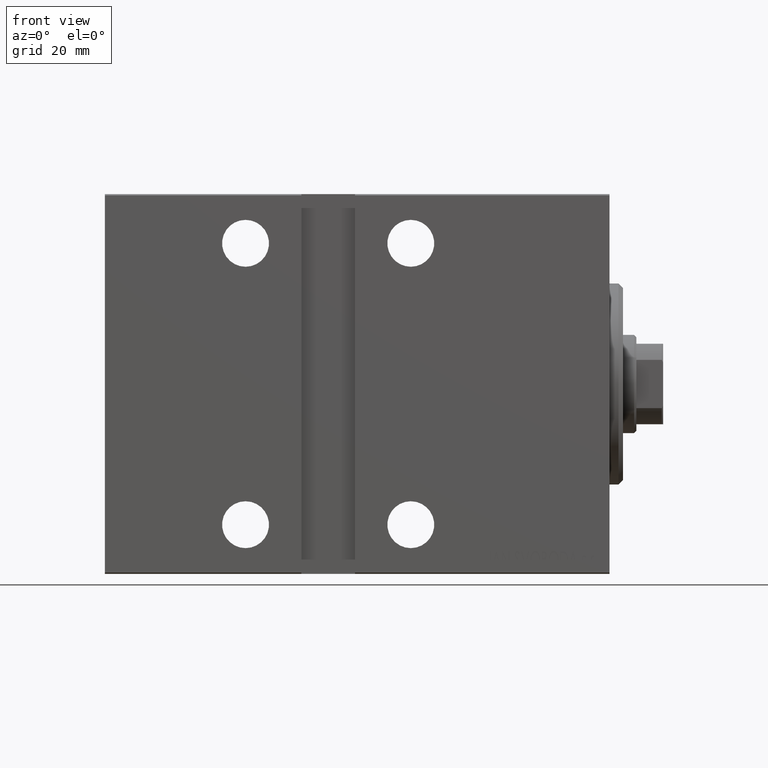
[diagram: clean part render]
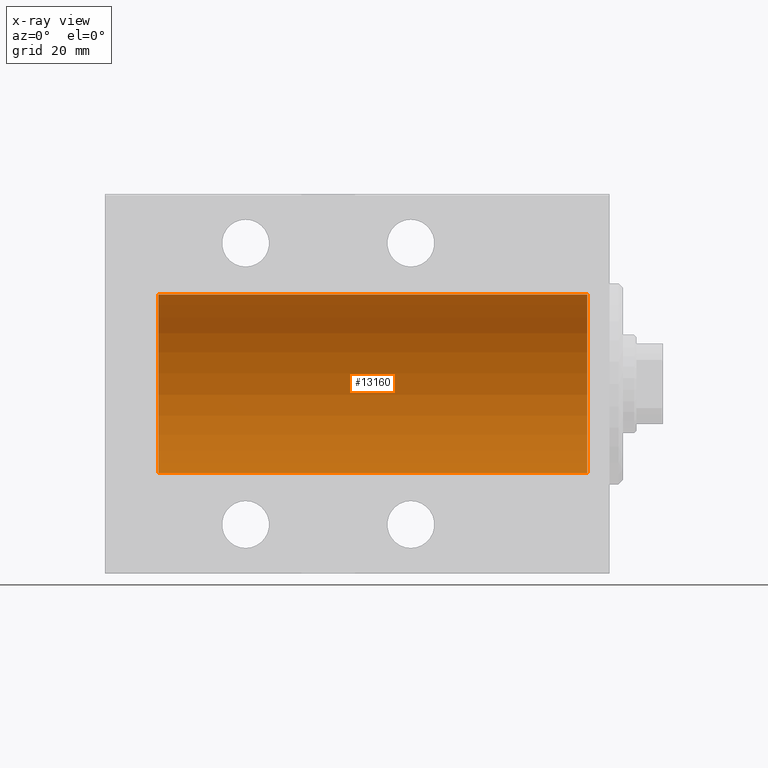
[diagram: x-ray — body ghosted, one internal face saturated and labeled with its STEP entity id]
A machine part, front view, then the same camera in x-ray: the body is ghosted and one INTERNAL B-rep face — a face not visible from any outside direction — is saturated and labeled: STEP entity #13160.
In plain terms, the highlighted cylindrical surface (partial cylindrical patch) has radius 20 mm, axis along (1, 0, -0).
Its self-contained STEP definition (entity closure, byte-faithful):
#347 = DIRECTION ( 'NONE',  ( 0.000000000000000000, 0.000000000000000000, 1.000000000000000000 ) ) ;
#1435 = DIRECTION ( 'NONE',  ( -1.000000000000000000, -0.000000000000000000, -0.000000000000000000 ) ) ;
#2377 = AXIS2_PLACEMENT_3D ( 'NONE', #10007, #30304, #7605 ) ;
#2648 = CARTESIAN_POINT ( 'NONE',  ( 101.0000000000000000, 0.000000000000000000, 20.00000000000000000 ) ) ;
#4101 = DIRECTION ( 'NONE',  ( -1.000000000000000000, -0.000000000000000000, -0.000000000000000000 ) ) ;
#4253 = EDGE_LOOP ( 'NONE', ( #20001, #27027, #23843, #39064 ) ) ;
#4713 = VERTEX_POINT ( 'NONE', #14643 ) ;
#7102 = VECTOR ( 'NONE', #1435, 1000.000000000000000 ) ;
#7605 = DIRECTION ( 'NONE',  ( 0.000000000000000000, 0.000000000000000000, 1.000000000000000000 ) ) ;
#7907 = CARTESIAN_POINT ( 'NONE',  ( 101.0000000000000000, 0.000000000000000000, 0.000000000000000000 ) ) ;
#10007 = CARTESIAN_POINT ( 'NONE',  ( 5.000000000000004441, 0.000000000000000000, 0.000000000000000000 ) ) ;
#12061 = AXIS2_PLACEMENT_3D ( 'NONE', #7907, #28184, #347 ) ;
#13160 = ADVANCED_FACE ( 'NONE', ( #27230 ), #20663, .F. ) ;
#13511 = VECTOR ( 'NONE', #29037, 1000.000000000000000 ) ;
#14643 = CARTESIAN_POINT ( 'NONE',  ( 101.0000000000000000, 0.000000000000000000, 20.00000000000000000 ) ) ;
#15724 = LINE ( 'NONE', #2648, #13511 ) ;
#15882 = CARTESIAN_POINT ( 'NONE',  ( 5.000000000000004441, 0.000000000000000000, 20.00000000000000000 ) ) ;
#17341 = EDGE_CURVE ( 'NONE', #28485, #27022, #31328, .T. ) ;
#20001 = ORIENTED_EDGE ( 'NONE', *, *, #26413, .F. ) ;
#20663 = CYLINDRICAL_SURFACE ( 'NONE', #27194, 20.00000000000000000 ) ;
#23843 = ORIENTED_EDGE ( 'NONE', *, *, #28322, .T. ) ;
#26142 = CARTESIAN_POINT ( 'NONE',  ( 5.000000000000004441, 2.449293598294706513E-15, -20.00000000000000000 ) ) ;
#26413 = EDGE_CURVE ( 'NONE', #28485, #4713, #32282, .T. ) ;
#26525 = EDGE_CURVE ( 'NONE', #4713, #34468, #15724, .T. ) ;
#27022 = VERTEX_POINT ( 'NONE', #26142 ) ;
#27027 = ORIENTED_EDGE ( 'NONE', *, *, #17341, .T. ) ;
#27194 = AXIS2_PLACEMENT_3D ( 'NONE', #33991, #4101, #31567 ) ;
#27230 = FACE_OUTER_BOUND ( 'NONE', #4253, .T. ) ;
#28184 = DIRECTION ( 'NONE',  ( -1.000000000000000000, 0.000000000000000000, 0.000000000000000000 ) ) ;
#28322 = EDGE_CURVE ( 'NONE', #27022, #34468, #37212, .T. ) ;
#28485 = VERTEX_POINT ( 'NONE', #28724 ) ;
#28724 = CARTESIAN_POINT ( 'NONE',  ( 101.0000000000000000, 2.449293598294706513E-15, -20.00000000000000000 ) ) ;
#29037 = DIRECTION ( 'NONE',  ( -1.000000000000000000, -0.000000000000000000, -0.000000000000000000 ) ) ;
#30304 = DIRECTION ( 'NONE',  ( -1.000000000000000000, 0.000000000000000000, 0.000000000000000000 ) ) ;
#31328 = LINE ( 'NONE', #40923, #7102 ) ;
#31567 = DIRECTION ( 'NONE',  ( 0.000000000000000000, 0.000000000000000000, 1.000000000000000000 ) ) ;
#32282 = CIRCLE ( 'NONE', #12061, 20.00000000000000000 ) ;
#33991 = CARTESIAN_POINT ( 'NONE',  ( 101.0000000000000000, 0.000000000000000000, 0.000000000000000000 ) ) ;
#34468 = VERTEX_POINT ( 'NONE', #15882 ) ;
#37212 = CIRCLE ( 'NONE', #2377, 20.00000000000000000 ) ;
#39064 = ORIENTED_EDGE ( 'NONE', *, *, #26525, .F. ) ;
#40923 = CARTESIAN_POINT ( 'NONE',  ( 101.0000000000000000, 2.449293598294706513E-15, -20.00000000000000000 ) ) ;